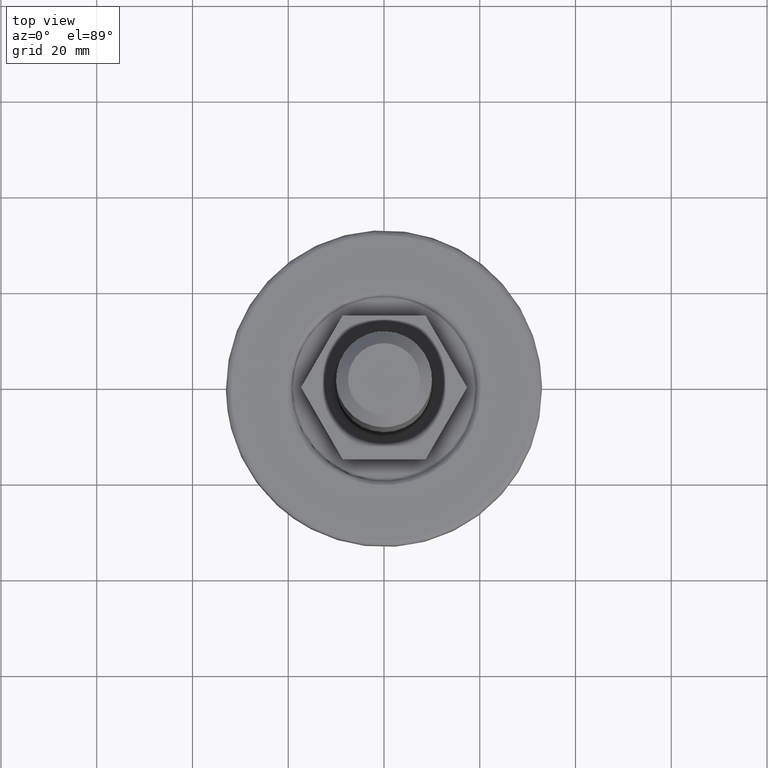
[diagram: clean part render]
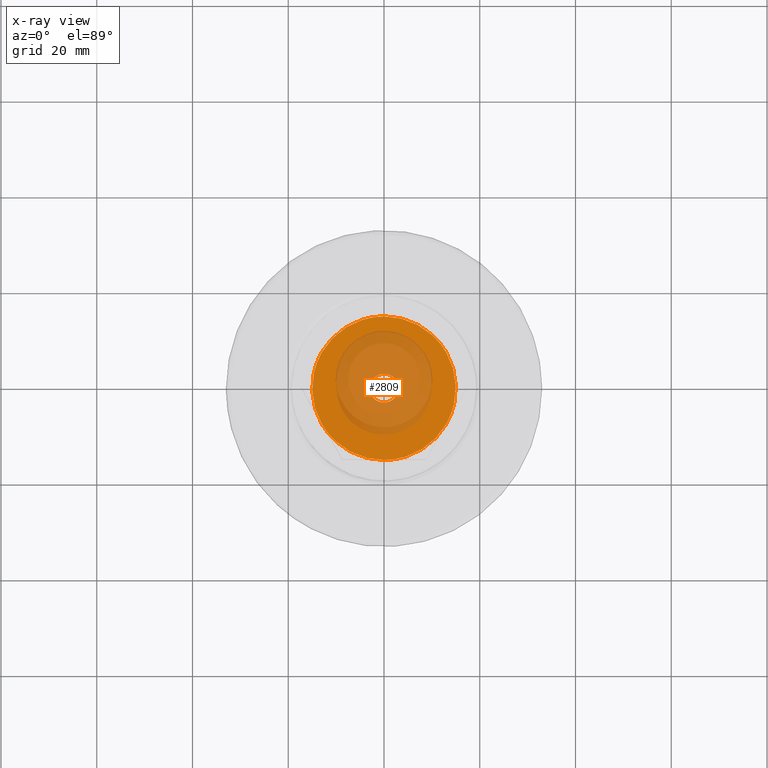
[diagram: x-ray — body ghosted, one internal face saturated and labeled with its STEP entity id]
A machine part, top view, then the same camera in x-ray: the body is ghosted and one INTERNAL B-rep face — a face not visible from any outside direction — is saturated and labeled: STEP entity #2809.
In plain terms, the highlighted face is a freeform B-spline surface patch.
Its self-contained STEP definition (entity closure, byte-faithful):
#1553=CARTESIAN_POINT('',(-0.235377287648340,-2.990752001162802,11.0));
#1554=VERTEX_POINT('',#1553);
#1560=CARTESIAN_POINT('',(-3.0,0.0,11.0));
#1561=VERTEX_POINT('',#1560);
#1562=CARTESIAN_POINT('',(-3.0,0.0,11.0));
#1563=CARTESIAN_POINT('',(-3.000000000000000,-2.773171474109975,11.0));
#1564=CARTESIAN_POINT('',(-0.235377287648340,-2.990752001162802,10.999999999999996));
#1572=(BOUNDED_CURVE()B_SPLINE_CURVE(2,(#1562,#1563,#1564),.UNSPECIFIED.,.F.,.U.)B_SPLINE_CURVE_WITH_KNOTS((3,3),(0.0,0.236331300579483),.UNSPECIFIED.)CURVE()GEOMETRIC_REPRESENTATION_ITEM()RATIONAL_B_SPLINE_CURVE((1.0,0.723120658667622,0.969723356060617))REPRESENTATION_ITEM(''));
#1573=EDGE_CURVE('',#1561,#1554,#1572,.T.);
#1575=CARTESIAN_POINT('',(0.235377287648339,2.990752001162803,11.0));
#1576=VERTEX_POINT('',#1575);
#1577=CARTESIAN_POINT('',(0.235377287648339,2.990752001162803,11.000000000000002));
#1578=CARTESIAN_POINT('',(0.117870321489970,3.0,11.0));
#1579=CARTESIAN_POINT('',(0.0,3.0,11.0));
#1580=CARTESIAN_POINT('',(-3.0,3.0,11.0));
#1581=CARTESIAN_POINT('',(-3.0,0.0,11.0));
#1589=(BOUNDED_CURVE()B_SPLINE_CURVE(2,(#1577,#1578,#1579,#1580,#1581),.UNSPECIFIED.,.F.,.U.)B_SPLINE_CURVE_WITH_KNOTS((3,2,3),(0.736331300579483,0.750000000000000,1.0),.UNSPECIFIED.)CURVE()GEOMETRIC_REPRESENTATION_ITEM()RATIONAL_B_SPLINE_CURVE((0.969723356060617,0.983986122518925,1.0,0.707106781186548,1.0))REPRESENTATION_ITEM(''));
#1590=EDGE_CURVE('',#1576,#1561,#1589,.T.);
#1666=CARTESIAN_POINT('',(3.0,0.0,11.0));
#1667=VERTEX_POINT('',#1666);
#1668=CARTESIAN_POINT('',(3.0,0.0,11.0));
#1669=CARTESIAN_POINT('',(3.000000000000000,2.773171474109991,11.0));
#1670=CARTESIAN_POINT('',(0.235377287648339,2.990752001162803,11.000000000000005));
#1678=(BOUNDED_CURVE()B_SPLINE_CURVE(2,(#1668,#1669,#1670),.UNSPECIFIED.,.F.,.U.)B_SPLINE_CURVE_WITH_KNOTS((3,3),(0.500000000000000,0.736331300579484),.UNSPECIFIED.)CURVE()GEOMETRIC_REPRESENTATION_ITEM()RATIONAL_B_SPLINE_CURVE((1.0,0.723120658667621,0.969723356060619))REPRESENTATION_ITEM(''));
#1679=EDGE_CURVE('',#1667,#1576,#1678,.T.);
#1681=CARTESIAN_POINT('',(-0.235377287648340,-2.990752001162802,11.000000000000004));
#1682=CARTESIAN_POINT('',(-0.117870321489970,-3.000000000000000,11.000000000000002));
#1683=CARTESIAN_POINT('',(0.0,-3.0,11.0));
#1684=CARTESIAN_POINT('',(3.0,-3.0,11.0));
#1685=CARTESIAN_POINT('',(3.0,0.0,11.0));
#1693=(BOUNDED_CURVE()B_SPLINE_CURVE(2,(#1681,#1682,#1683,#1684,#1685),.UNSPECIFIED.,.F.,.U.)B_SPLINE_CURVE_WITH_KNOTS((3,2,3),(0.236331300579483,0.250000000000000,0.500000000000000),.UNSPECIFIED.)CURVE()GEOMETRIC_REPRESENTATION_ITEM()RATIONAL_B_SPLINE_CURVE((0.969723356060617,0.983986122518925,1.0,0.707106781186548,1.0))REPRESENTATION_ITEM(''));
#1694=EDGE_CURVE('',#1554,#1667,#1693,.T.);
#2260=CARTESIAN_POINT('',(0.0,-15.0,11.0));
#2261=VERTEX_POINT('',#2260);
#2280=CARTESIAN_POINT('',(12.990381028383300,-7.499999950838680,11.0));
#2281=VERTEX_POINT('',#2280);
#2282=CARTESIAN_POINT('',(12.990381028383300,-7.499999950838680,11.0));
#2283=CARTESIAN_POINT('',(8.660254023992376,-14.999999943233405,10.999999999999998));
#2284=CARTESIAN_POINT('',(0.0,-15.0,11.0));
#2292=(BOUNDED_CURVE()B_SPLINE_CURVE(2,(#2282,#2283,#2284),.UNSPECIFIED.,.F.,.U.)CURVE()GEOMETRIC_REPRESENTATION_ITEM()QUASI_UNIFORM_CURVE()RATIONAL_B_SPLINE_CURVE((1.0,0.866025403311384,1.0))REPRESENTATION_ITEM(''));
#2293=EDGE_CURVE('',#2281,#2261,#2292,.T.);
#2325=CARTESIAN_POINT('',(-12.990381028383300,-7.499999950838720,11.0));
#2326=VERTEX_POINT('',#2325);
#2344=CARTESIAN_POINT('',(0.0,-15.0,11.0));
#2345=CARTESIAN_POINT('',(-8.660254023992360,-14.999999943233396,11.0));
#2346=CARTESIAN_POINT('',(-12.990381028383300,-7.499999950838720,11.0));
#2354=(BOUNDED_CURVE()B_SPLINE_CURVE(2,(#2344,#2345,#2346),.UNSPECIFIED.,.F.,.U.)CURVE()GEOMETRIC_REPRESENTATION_ITEM()QUASI_UNIFORM_CURVE()RATIONAL_B_SPLINE_CURVE((1.0,0.866025403311384,1.0))REPRESENTATION_ITEM(''));
#2355=EDGE_CURVE('',#2261,#2326,#2354,.T.);
#2387=CARTESIAN_POINT('',(-12.990381028383300,7.499999950838710,11.0));
#2388=VERTEX_POINT('',#2387);
#2406=CARTESIAN_POINT('',(-12.990381028383300,-7.499999950838720,11.0));
#2407=CARTESIAN_POINT('',(-17.320507991218161,-7.806256E-015,11.0));
#2408=CARTESIAN_POINT('',(-12.990381028383300,7.499999950838710,11.0));
#2416=(BOUNDED_CURVE()B_SPLINE_CURVE(2,(#2406,#2407,#2408),.UNSPECIFIED.,.F.,.U.)CURVE()GEOMETRIC_REPRESENTATION_ITEM()QUASI_UNIFORM_CURVE()RATIONAL_B_SPLINE_CURVE((1.0,0.866025404730548,1.0))REPRESENTATION_ITEM(''));
#2417=EDGE_CURVE('',#2326,#2388,#2416,.T.);
#2449=CARTESIAN_POINT('',(0.0,15.0,11.0));
#2450=VERTEX_POINT('',#2449);
#2466=CARTESIAN_POINT('',(-12.990381028383300,7.499999950838710,11.0));
#2467=CARTESIAN_POINT('',(-8.660254023992366,14.999999943233403,11.0));
#2468=CARTESIAN_POINT('',(0.0,15.0,11.0));
#2476=(BOUNDED_CURVE()B_SPLINE_CURVE(2,(#2466,#2467,#2468),.UNSPECIFIED.,.F.,.U.)CURVE()GEOMETRIC_REPRESENTATION_ITEM()QUASI_UNIFORM_CURVE()RATIONAL_B_SPLINE_CURVE((1.0,0.866025403311384,1.0))REPRESENTATION_ITEM(''));
#2477=EDGE_CURVE('',#2388,#2450,#2476,.T.);
#2509=CARTESIAN_POINT('',(12.990381028383300,7.499999950838680,11.0));
#2510=VERTEX_POINT('',#2509);
#2528=CARTESIAN_POINT('',(0.0,15.0,11.0));
#2529=CARTESIAN_POINT('',(8.660254023992374,14.999999943233401,11.0));
#2530=CARTESIAN_POINT('',(12.990381028383300,7.499999950838680,11.0));
#2538=(BOUNDED_CURVE()B_SPLINE_CURVE(2,(#2528,#2529,#2530),.UNSPECIFIED.,.F.,.U.)CURVE()GEOMETRIC_REPRESENTATION_ITEM()QUASI_UNIFORM_CURVE()RATIONAL_B_SPLINE_CURVE((1.0,0.866025403311384,1.0))REPRESENTATION_ITEM(''));
#2539=EDGE_CURVE('',#2450,#2510,#2538,.T.);
#2591=CARTESIAN_POINT('',(12.990381028383300,7.499999950838680,11.0));
#2592=CARTESIAN_POINT('',(17.320507991218150,6.071532E-015,11.0));
#2593=CARTESIAN_POINT('',(12.990381028383300,-7.499999950838680,11.0));
#2601=(BOUNDED_CURVE()B_SPLINE_CURVE(2,(#2591,#2592,#2593),.UNSPECIFIED.,.F.,.U.)CURVE()GEOMETRIC_REPRESENTATION_ITEM()QUASI_UNIFORM_CURVE()RATIONAL_B_SPLINE_CURVE((1.0,0.866025404730549,1.0))REPRESENTATION_ITEM(''));
#2602=EDGE_CURVE('',#2510,#2281,#2601,.T.);
#2790=CARTESIAN_POINT('',(-16.498500164917360,-16.498499941854181,11.0));
#2791=CARTESIAN_POINT('',(16.498500701359148,-16.498499941854181,11.0));
#2792=CARTESIAN_POINT('',(-16.498500164917360,16.498500746516889,11.0));
#2793=CARTESIAN_POINT('',(16.498500701359148,16.498500746516889,11.0));
#2794=B_SPLINE_SURFACE_WITH_KNOTS('',1,1,((#2790,#2792),(#2791,#2793)),.UNSPECIFIED.,.F.,.F.,.U.,(2,2),(2,2),(0.0,32.997000866276508),(0.0,32.997000688371060),.UNSPECIFIED.);
#2795=ORIENTED_EDGE('',*,*,#2602,.T.);
#2796=ORIENTED_EDGE('',*,*,#2293,.T.);
#2797=ORIENTED_EDGE('',*,*,#2355,.T.);
#2798=ORIENTED_EDGE('',*,*,#2417,.T.);
#2799=ORIENTED_EDGE('',*,*,#2477,.T.);
#2800=ORIENTED_EDGE('',*,*,#2539,.T.);
#2801=EDGE_LOOP('',(#2795,#2796,#2797,#2798,#2799,#2800));
#2802=FACE_OUTER_BOUND('',#2801,.T.);
#2803=ORIENTED_EDGE('',*,*,#1679,.T.);
#2804=ORIENTED_EDGE('',*,*,#1590,.T.);
#2805=ORIENTED_EDGE('',*,*,#1573,.T.);
#2806=ORIENTED_EDGE('',*,*,#1694,.T.);
#2807=EDGE_LOOP('',(#2803,#2804,#2805,#2806));
#2808=FACE_BOUND('',#2807,.T.);
#2809=ADVANCED_FACE('',(#2802,#2808),#2794,.F.);